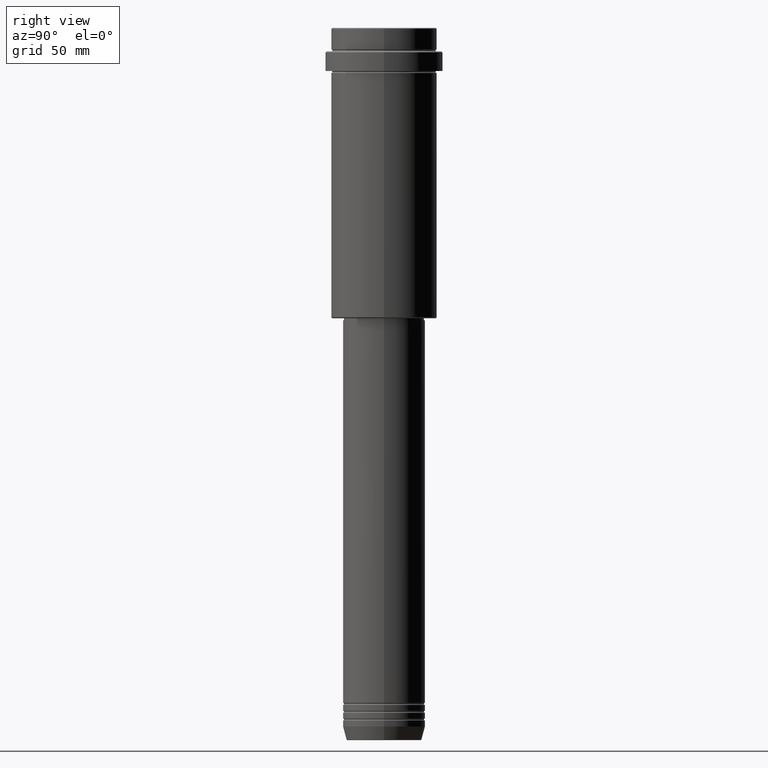
[diagram: clean part render]
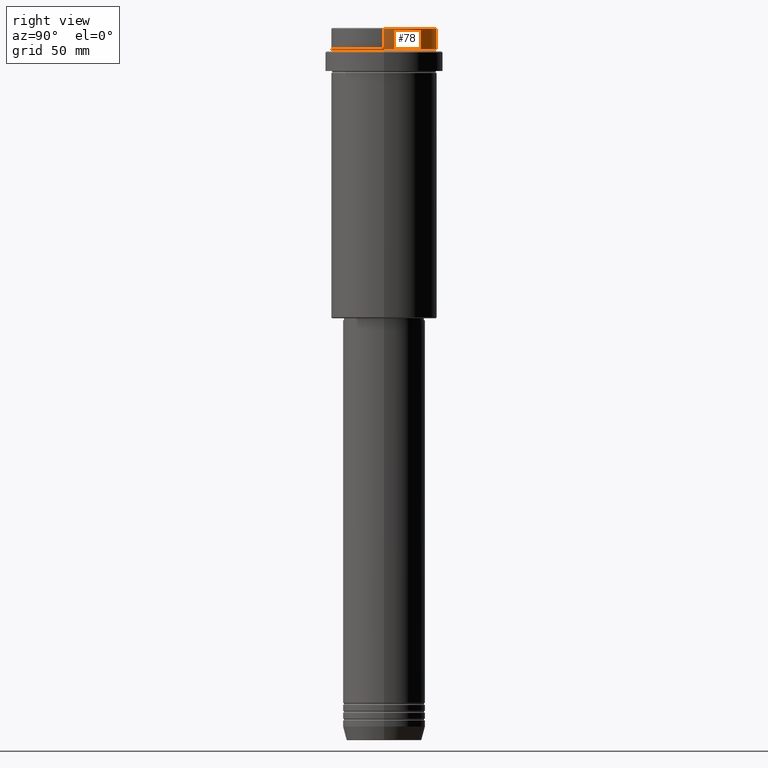
[diagram: same view with one face highlighted and labeled with its STEP entity id]
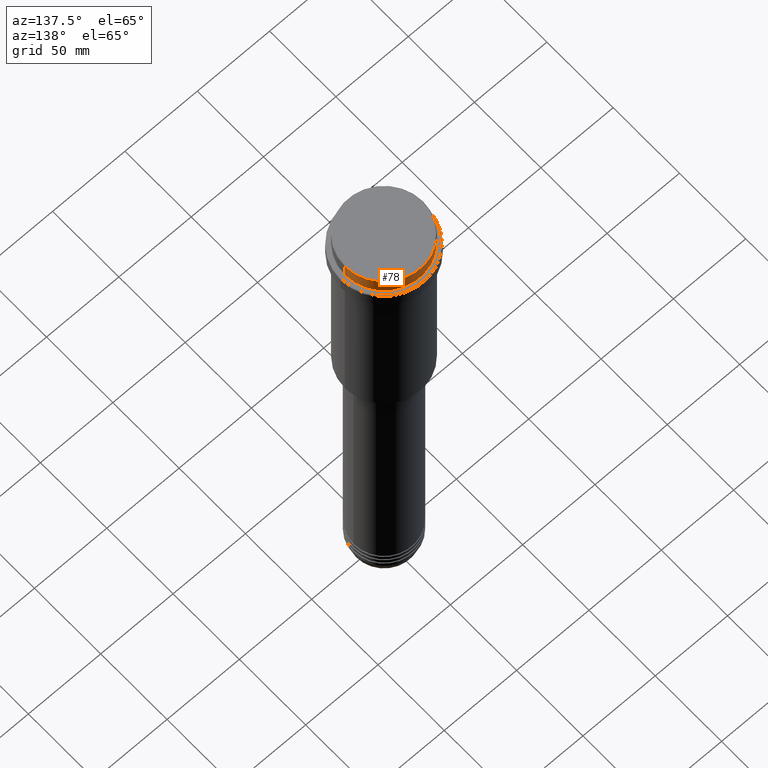
[diagram: same view with one face highlighted and labeled with its STEP entity id]
A machine part, right view. The second image highlights one B-rep face of the part: STEP entity #78.
A second angle (auxiliary view) of the same face is appended — the face is thin or edge-on in the first view.
In plain terms, the highlighted cylindrical surface (partial cylindrical patch) has radius 27 mm, axis along (-0, -0, 1).
Its self-contained STEP definition (entity closure, byte-faithful):
#11 = EDGE_CURVE ( 'NONE', #1076, #895, #37, .T. ) ;
#37 = CIRCLE ( 'NONE', #886, 26.99999999999999645 ) ;
#49 = EDGE_CURVE ( 'NONE', #334, #895, #1392, .T. ) ;
#78 = ADVANCED_FACE ( 'NONE', ( #1290 ), #1195, .T. ) ;
#130 = CARTESIAN_POINT ( 'NONE',  ( 26.99999999999999645, 0.000000000000000000, -0.5000000000000316414 ) ) ;
#215 = CIRCLE ( 'NONE', #381, 26.99999999999999645 ) ;
#297 = CARTESIAN_POINT ( 'NONE',  ( 26.99999999999999645, 0.000000000000000000, 0.000000000000000000 ) ) ;
#334 = VERTEX_POINT ( 'NONE', #1033 ) ;
#381 = AXIS2_PLACEMENT_3D ( 'NONE', #1078, #648, #1098 ) ;
#398 = EDGE_LOOP ( 'NONE', ( #1065, #448, #769, #950 ) ) ;
#405 = DIRECTION ( 'NONE',  ( 1.000000000000000000, 0.000000000000000000, 0.000000000000000000 ) ) ;
#448 = ORIENTED_EDGE ( 'NONE', *, *, #1208, .T. ) ;
#472 = VECTOR ( 'NONE', #1178, 1000.000000000000000 ) ;
#623 = CARTESIAN_POINT ( 'NONE',  ( 0.000000000000000000, 0.000000000000000000, 0.000000000000000000 ) ) ;
#645 = DIRECTION ( 'NONE',  ( 1.000000000000000000, 0.000000000000000000, 0.000000000000000000 ) ) ;
#648 = DIRECTION ( 'NONE',  ( -0.000000000000000000, -0.000000000000000000, 1.000000000000000000 ) ) ;
#687 = CARTESIAN_POINT ( 'NONE',  ( -26.99999999999999645, 3.306546357697853339E-15, -0.5000000000000316414 ) ) ;
#701 = AXIS2_PLACEMENT_3D ( 'NONE', #623, #1159, #645 ) ;
#738 = DIRECTION ( 'NONE',  ( -0.000000000000000000, -0.000000000000000000, 1.000000000000000000 ) ) ;
#769 = ORIENTED_EDGE ( 'NONE', *, *, #11, .T. ) ;
#782 = CARTESIAN_POINT ( 'NONE',  ( -26.99999999999999645, 3.306546357697853339E-15, -11.00000000000000178 ) ) ;
#886 = AXIS2_PLACEMENT_3D ( 'NONE', #1268, #1280, #405 ) ;
#895 = VERTEX_POINT ( 'NONE', #130 ) ;
#950 = ORIENTED_EDGE ( 'NONE', *, *, #49, .F. ) ;
#951 = CARTESIAN_POINT ( 'NONE',  ( -26.99999999999999645, 3.306546357697853339E-15, 0.000000000000000000 ) ) ;
#1012 = VERTEX_POINT ( 'NONE', #782 ) ;
#1033 = CARTESIAN_POINT ( 'NONE',  ( 26.99999999999999645, 0.000000000000000000, -11.00000000000000178 ) ) ;
#1065 = ORIENTED_EDGE ( 'NONE', *, *, #1410, .T. ) ;
#1076 = VERTEX_POINT ( 'NONE', #687 ) ;
#1078 = CARTESIAN_POINT ( 'NONE',  ( 0.000000000000000000, 0.000000000000000000, -11.00000000000000178 ) ) ;
#1098 = DIRECTION ( 'NONE',  ( 1.000000000000000000, 0.000000000000000000, 0.000000000000000000 ) ) ;
#1159 = DIRECTION ( 'NONE',  ( -0.000000000000000000, -0.000000000000000000, 1.000000000000000000 ) ) ;
#1178 = DIRECTION ( 'NONE',  ( -0.000000000000000000, -0.000000000000000000, 1.000000000000000000 ) ) ;
#1195 = CYLINDRICAL_SURFACE ( 'NONE', #701, 26.99999999999999645 ) ;
#1208 = EDGE_CURVE ( 'NONE', #1012, #1076, #1275, .T. ) ;
#1268 = CARTESIAN_POINT ( 'NONE',  ( 0.000000000000000000, 0.000000000000000000, -0.5000000000000316414 ) ) ;
#1275 = LINE ( 'NONE', #951, #1276 ) ;
#1276 = VECTOR ( 'NONE', #738, 1000.000000000000000 ) ;
#1280 = DIRECTION ( 'NONE',  ( 0.000000000000000000, 0.000000000000000000, -1.000000000000000000 ) ) ;
#1290 = FACE_OUTER_BOUND ( 'NONE', #398, .T. ) ;
#1392 = LINE ( 'NONE', #297, #472 ) ;
#1410 = EDGE_CURVE ( 'NONE', #334, #1012, #215, .T. ) ;